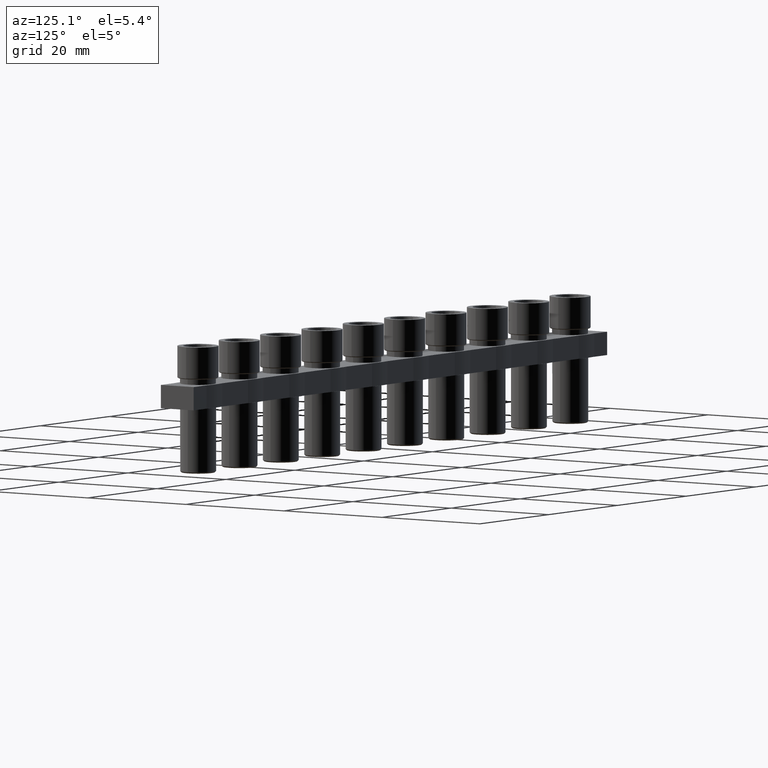
[diagram: clean part render]
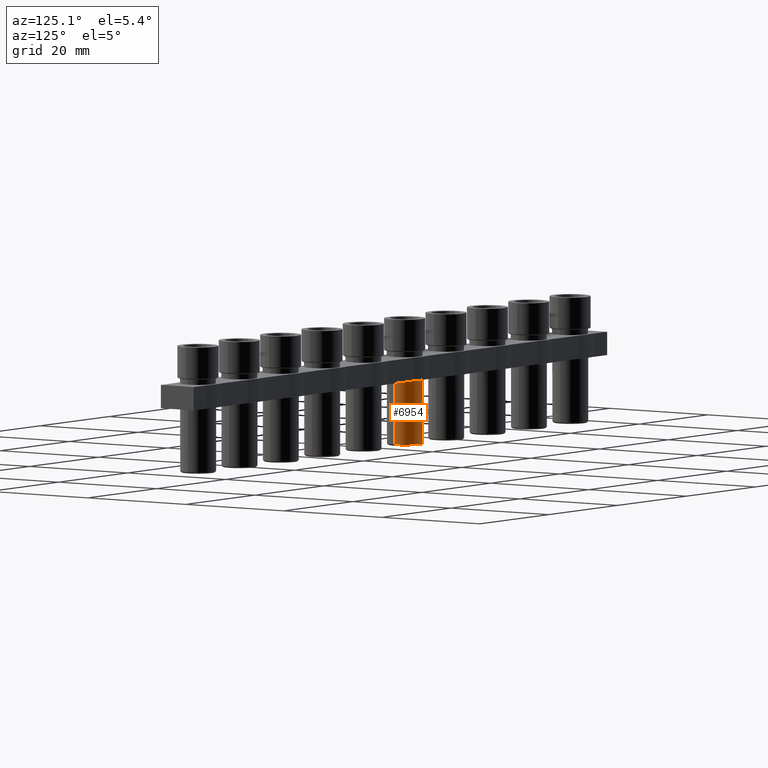
[diagram: same view with one face highlighted and labeled with its STEP entity id]
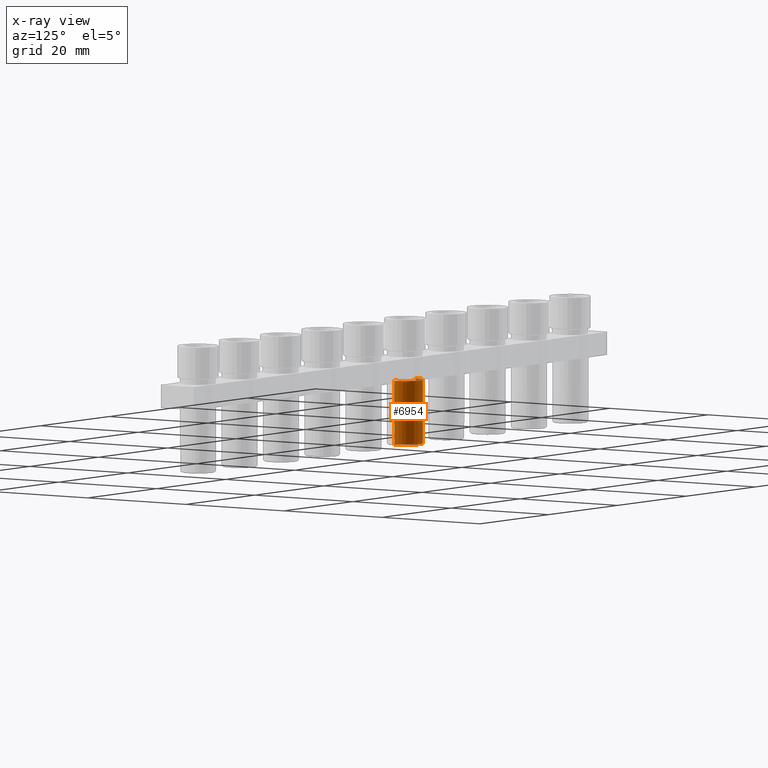
[diagram: x-ray of the same camera — body ghosted, the highlighted face saturated]
A machine part, auxiliary view. The second image highlights one B-rep face of the part: STEP entity #6954.
The next image is the same camera in x-ray: the body ghosted, the highlighted face saturated — about 0% of this face is hidden behind the body in this view.
In plain terms, the highlighted cylindrical surface (edge-blend (fillet) strip) has radius 3 mm, axis along (-0, -0, -1).
Its self-contained STEP definition (entity closure, byte-faithful):
#660 = ORIENTED_EDGE ( 'NONE', *, *, #15725, .F. ) ;
#663 = ORIENTED_EDGE ( 'NONE', *, *, #6536, .F. ) ;
#694 = ORIENTED_EDGE ( 'NONE', *, *, #15703, .T. ) ;
#706 = ORIENTED_EDGE ( 'NONE', *, *, #15681, .T. ) ;
#712 = ORIENTED_EDGE ( 'NONE', *, *, #15688, .T. ) ;
#1786 = CARTESIAN_POINT ( 'NONE',  ( 44.93832239341087800, 5.629299843167805300E-015, -15.60000000008048600 ) ) ;
#1816 = CARTESIAN_POINT ( 'NONE',  ( 47.93832239341087100, 2.999999999911690200, -15.60000000008048600 ) ) ;
#1826 = CARTESIAN_POINT ( 'NONE',  ( 50.93832239340301300, 5.996693882911529500E-015, -4.900000000077398000 ) ) ;
#1834 = CARTESIAN_POINT ( 'NONE',  ( 50.93832239341086400, 5.996693882912011500E-015, -15.60000000008048600 ) ) ;
#1847 = CARTESIAN_POINT ( 'NONE',  ( 44.93832239341873000, 5.629299843167805300E-015, -4.900000000077398000 ) ) ;
#3225 = DIRECTION ( 'NONE',  ( -1.000000000000000000, 0.0000000000000000000, 0.0000000000000000000 ) ) ;
#3234 = CARTESIAN_POINT ( 'NONE',  ( 47.93832239341087100, 5.629299843167805300E-015, -4.900000000077398000 ) ) ;
#3247 = DIRECTION ( 'NONE',  ( -0.0000000000000000000, -0.0000000000000000000, 1.000000000000000000 ) ) ;
#4536 = EDGE_LOOP ( 'NONE', ( #663, #706, #694, #712, #660 ) ) ;
#5264 = VERTEX_POINT ( 'NONE', #1786 ) ;
#5334 = VERTEX_POINT ( 'NONE', #1826 ) ;
#5337 = VERTEX_POINT ( 'NONE', #1816 ) ;
#5352 = VERTEX_POINT ( 'NONE', #1834 ) ;
#5358 = VERTEX_POINT ( 'NONE', #1847 ) ;
#6536 = EDGE_CURVE ( 'NONE', #5334, #5358, #9531, .T. ) ;
#6954 = ADVANCED_FACE ( 'NONE', ( #9747 ), #9761, .T. ) ;
#8714 = AXIS2_PLACEMENT_3D ( 'NONE', #14284, #14313, #14293 ) ;
#8726 = CIRCLE ( 'NONE', #8750, 2.999999999999995600 ) ;
#8737 = CIRCLE ( 'NONE', #8714, 2.999999999999995600 ) ;
#8750 = AXIS2_PLACEMENT_3D ( 'NONE', #14356, #14336, #14358 ) ;
#8751 = VECTOR ( 'NONE', #15349, 1000.000000000000000 ) ;
#9513 = AXIS2_PLACEMENT_3D ( 'NONE', #3234, #3247, #3225 ) ;
#9531 = CIRCLE ( 'NONE', #9513, 2.999999999992141000 ) ;
#9719 = DIRECTION ( 'NONE',  ( -0.0000000000000000000, -0.0000000000000000000, -1.000000000000000000 ) ) ;
#9723 = CARTESIAN_POINT ( 'NONE',  ( 47.93832239341087100, 5.629299843167805300E-015, -4.800000000080492800 ) ) ;
#9747 = FACE_OUTER_BOUND ( 'NONE', #4536, .T. ) ;
#9749 = DIRECTION ( 'NONE',  ( -1.000000000000000000, 0.0000000000000000000, 0.0000000000000000000 ) ) ;
#9761 = CYLINDRICAL_SURFACE ( 'NONE', #17034, 2.999999999999995600 ) ;
#14284 = CARTESIAN_POINT ( 'NONE',  ( 47.93832239341087100, 5.629299843167805300E-015, -15.60000000008048600 ) ) ;
#14293 = DIRECTION ( 'NONE',  ( -1.000000000000000000, 0.0000000000000000000, 0.0000000000000000000 ) ) ;
#14313 = DIRECTION ( 'NONE',  ( 0.0000000000000000000, 0.0000000000000000000, 1.000000000000000000 ) ) ;
#14336 = DIRECTION ( 'NONE',  ( 0.0000000000000000000, 0.0000000000000000000, 1.000000000000000000 ) ) ;
#14356 = CARTESIAN_POINT ( 'NONE',  ( 47.93832239341087100, 5.629299843167805300E-015, -15.60000000008048600 ) ) ;
#14358 = DIRECTION ( 'NONE',  ( -1.000000000000000000, 0.0000000000000000000, 0.0000000000000000000 ) ) ;
#14419 = LINE ( 'NONE', #14440, #15594 ) ;
#14440 = CARTESIAN_POINT ( 'NONE',  ( 44.93832239341087800, 5.629299843167805300E-015, -4.800000000080492800 ) ) ;
#14441 = DIRECTION ( 'NONE',  ( -0.0000000000000000000, -0.0000000000000000000, -1.000000000000000000 ) ) ;
#15345 = LINE ( 'NONE', #15348, #8751 ) ;
#15348 = CARTESIAN_POINT ( 'NONE',  ( 50.93832239341086400, 5.996693882912010700E-015, -4.800000000080492800 ) ) ;
#15349 = DIRECTION ( 'NONE',  ( -0.0000000000000000000, -0.0000000000000000000, -1.000000000000000000 ) ) ;
#15594 = VECTOR ( 'NONE', #14441, 1000.000000000000000 ) ;
#15681 = EDGE_CURVE ( 'NONE', #5334, #5352, #15345, .T. ) ;
#15688 = EDGE_CURVE ( 'NONE', #5337, #5264, #8737, .T. ) ;
#15703 = EDGE_CURVE ( 'NONE', #5352, #5337, #8726, .T. ) ;
#15725 = EDGE_CURVE ( 'NONE', #5358, #5264, #14419, .T. ) ;
#17034 = AXIS2_PLACEMENT_3D ( 'NONE', #9723, #9719, #9749 ) ;